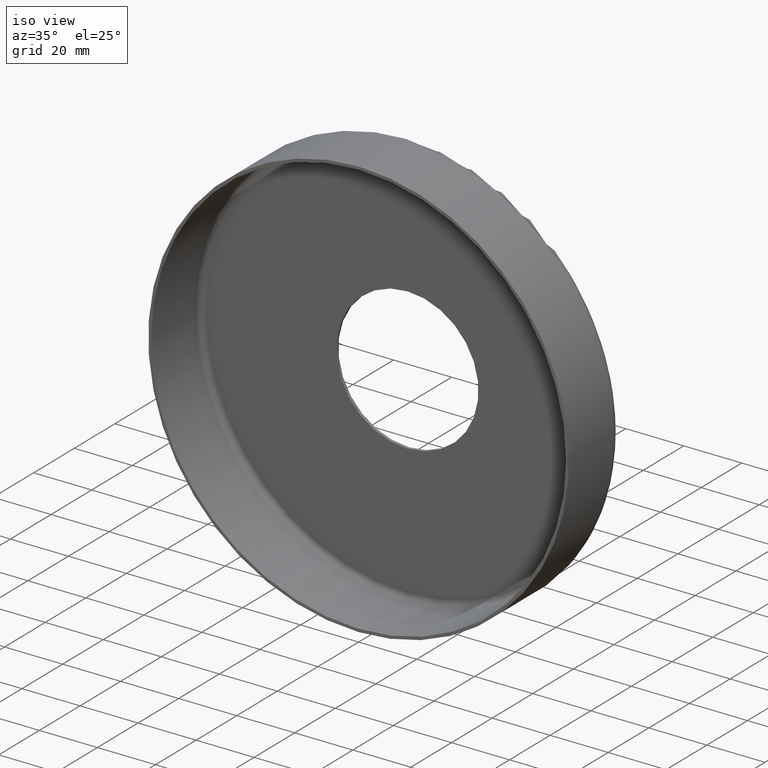
[diagram: clean part render]
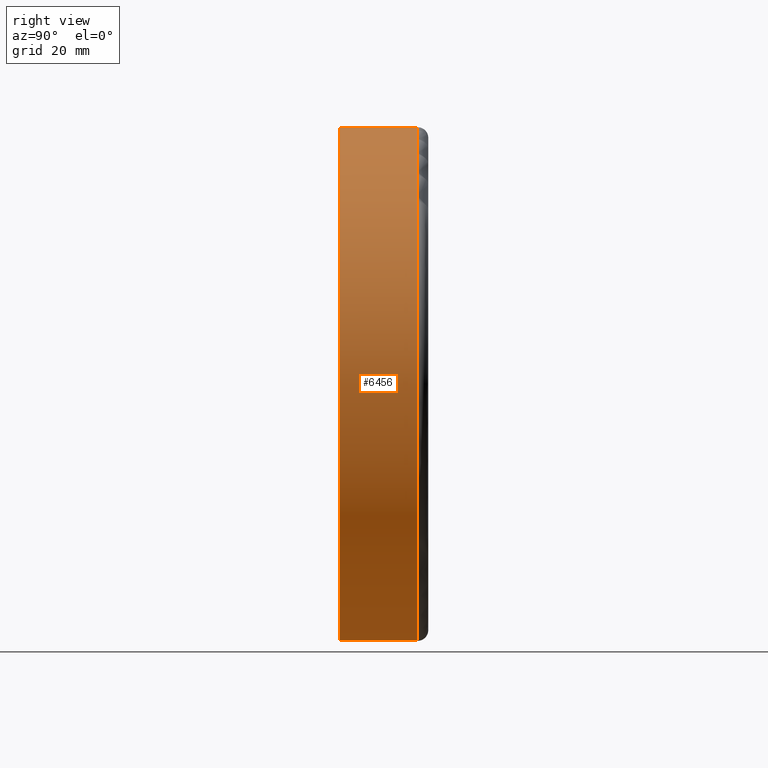
[diagram: tour spotlight — one face highlighted and labeled with its STEP entity id]
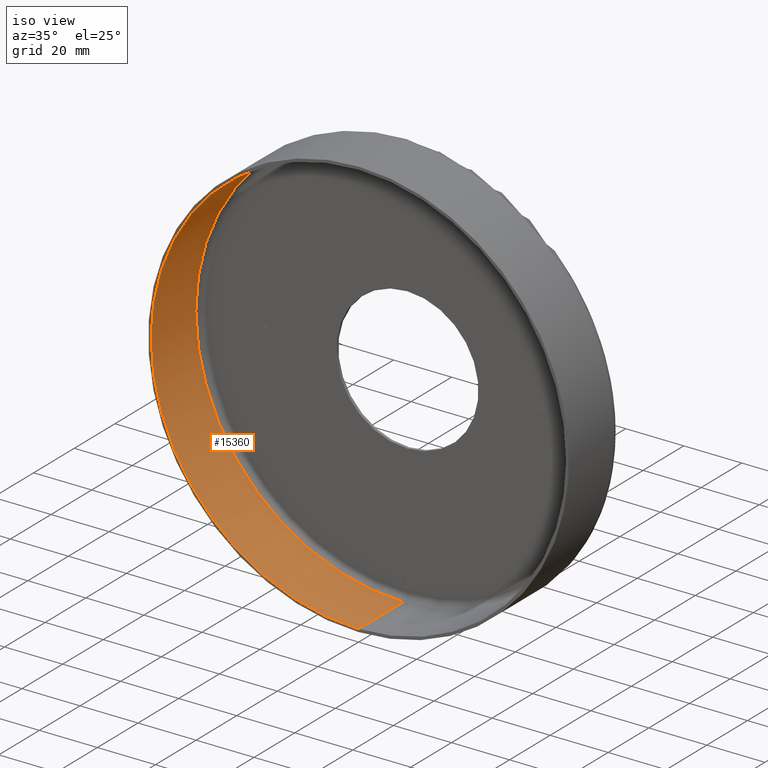
[diagram: tour spotlight — one face highlighted and labeled with its STEP entity id]
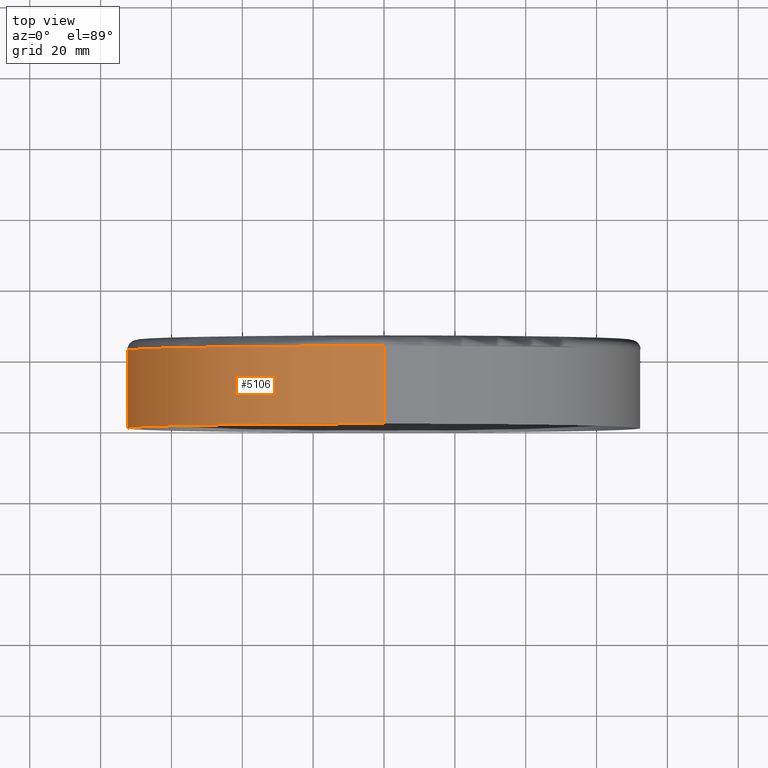
[diagram: tour spotlight — one face highlighted and labeled with its STEP entity id]
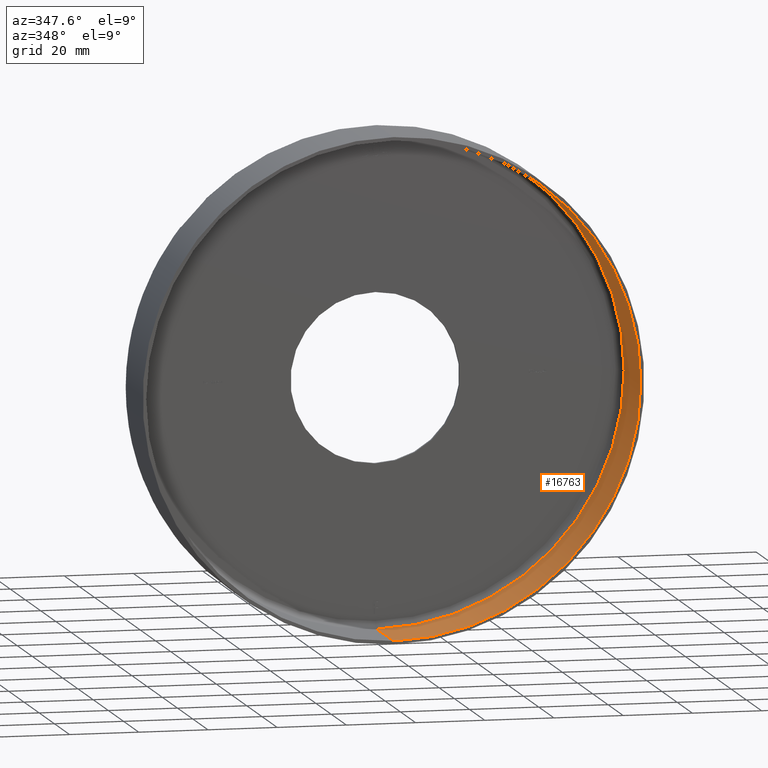
[diagram: tour spotlight — one face highlighted and labeled with its STEP entity id]
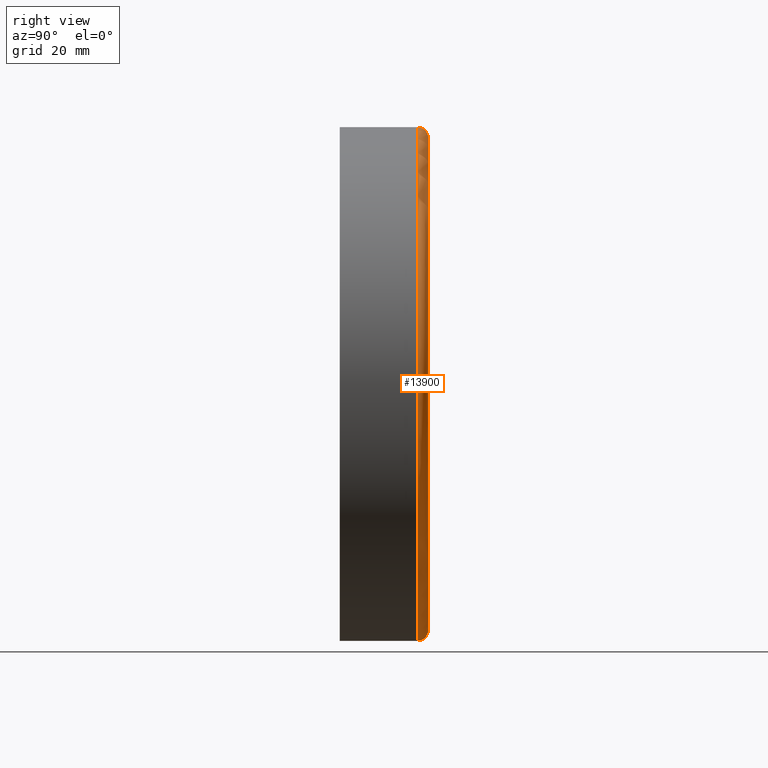
[diagram: tour spotlight — one face highlighted and labeled with its STEP entity id]
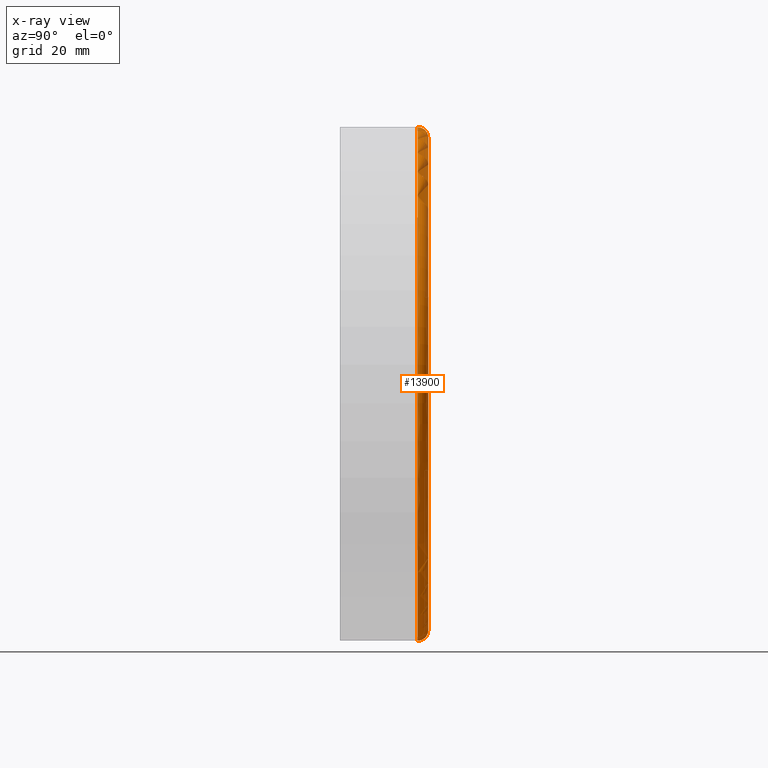
[diagram: x-ray of the same camera — body ghosted, this tour face saturated]
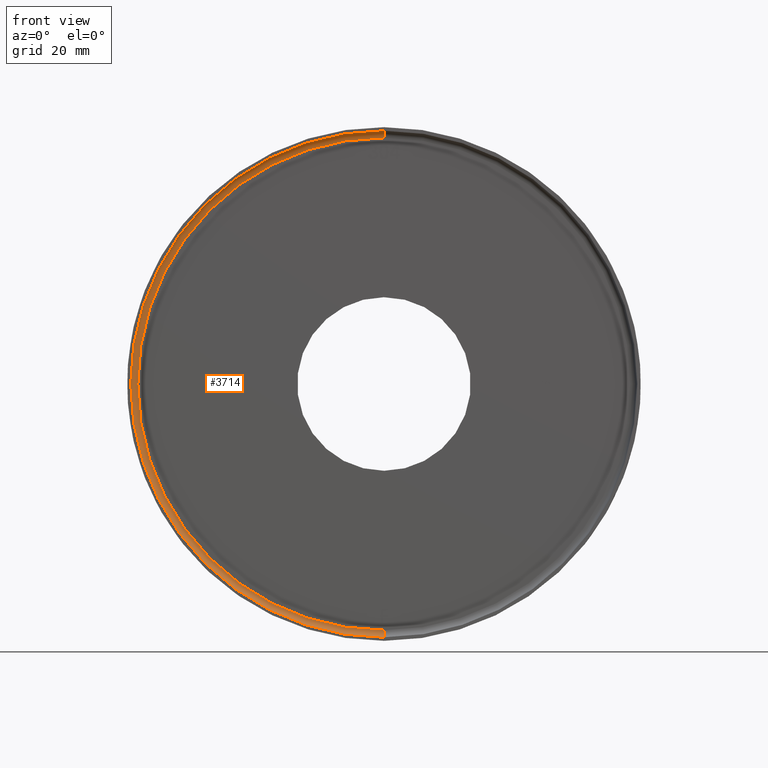
[diagram: tour spotlight — one face highlighted and labeled with its STEP entity id]
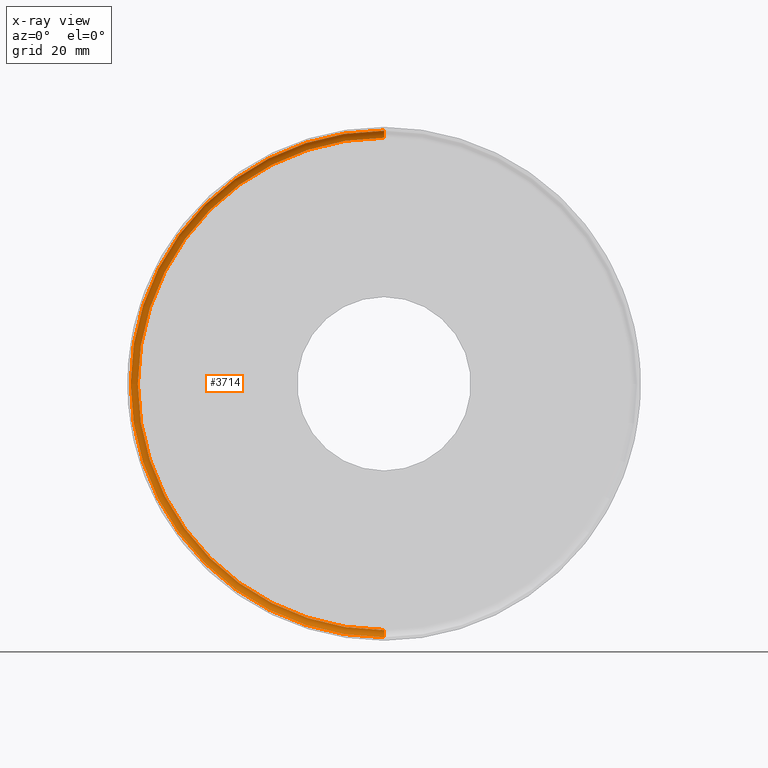
[diagram: x-ray of the same camera — body ghosted, this tour face saturated]
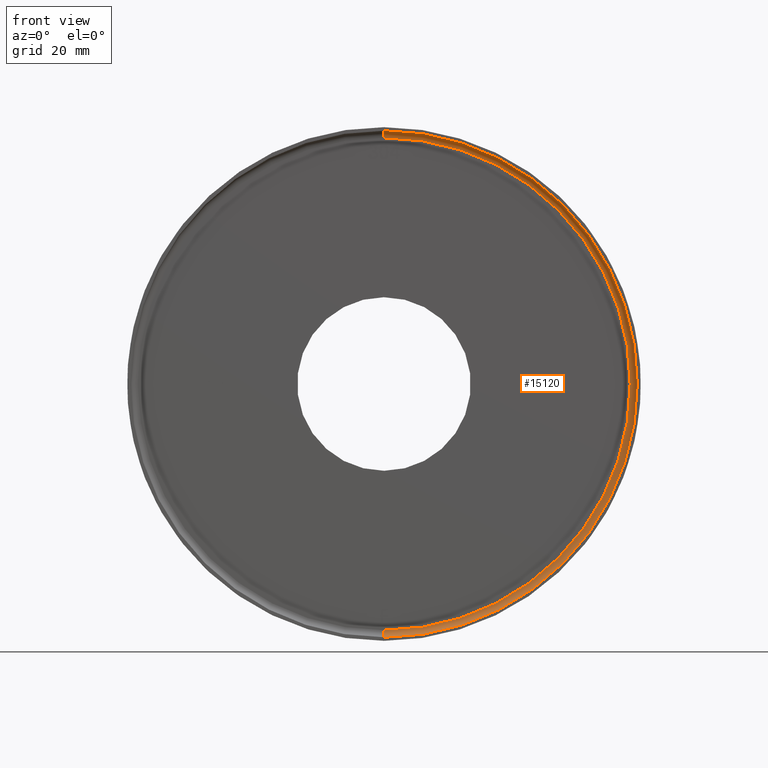
[diagram: tour spotlight — one face highlighted and labeled with its STEP entity id]
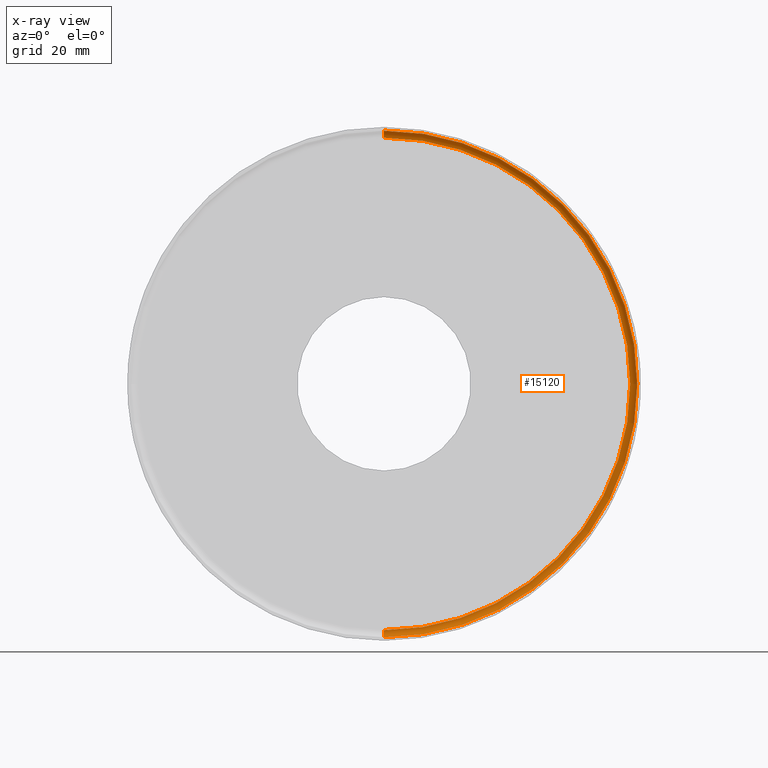
[diagram: x-ray of the same camera — body ghosted, this tour face saturated]
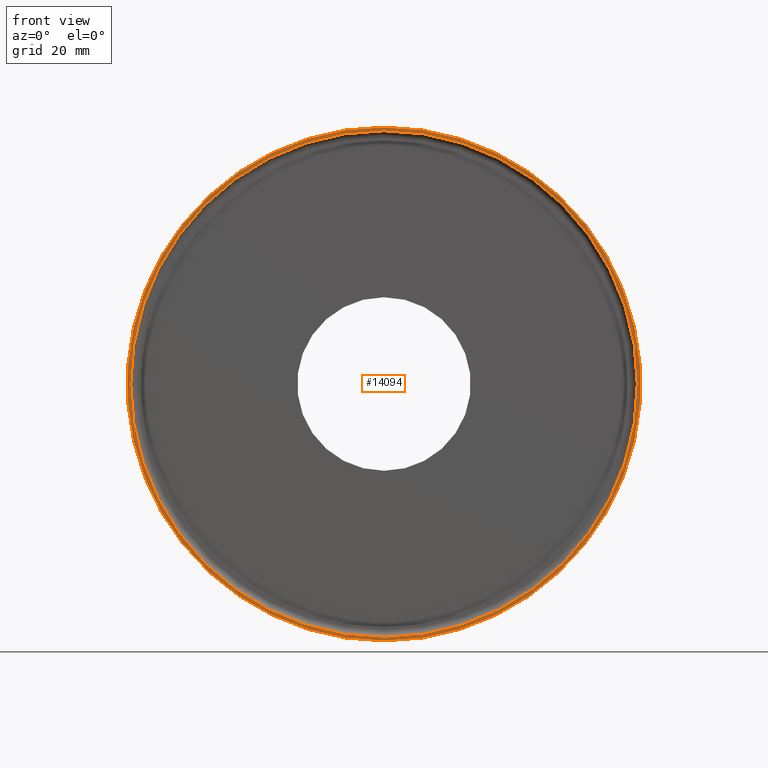
[diagram: tour spotlight — one face highlighted and labeled with its STEP entity id]
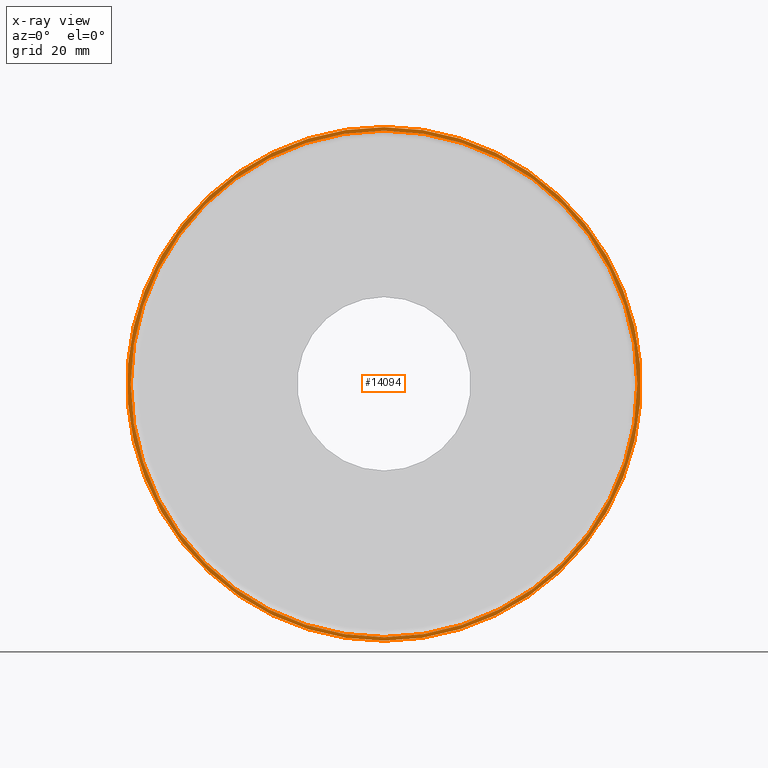
[diagram: x-ray of the same camera — body ghosted, this tour face saturated]
A machine part: a face-by-face anatomy tour. The part has 303 B-rep faces; the first image is the clean iso view, then the 8 largest visible faces are spotlighted one at a time (largest first), each with its STEP entity span.

Face 1 — right view, entity #6456. In plain terms, the highlighted cylindrical surface (partial cylindrical patch) has radius 72.5 mm, axis along (-0, -1, -0).
Definition (entity closure, byte-faithful):
#410 = ORIENTED_EDGE ( 'NONE', *, *, #5910, .F. ) ;
#1244 = CARTESIAN_POINT ( 'NONE',  ( 8.878689293818309285E-15, 22.00000000000000355, 72.50000000000000000 ) ) ;
#1687 = DIRECTION ( 'NONE',  ( 0.000000000000000000, 0.000000000000000000, -1.000000000000000000 ) ) ;
#1801 = DIRECTION ( 'NONE',  ( -0.000000000000000000, -1.000000000000000000, -0.000000000000000000 ) ) ;
#2802 = LINE ( 'NONE', #13670, #3226 ) ;
#2814 = EDGE_CURVE ( 'NONE', #6087, #8935, #3961, .T. ) ;
#2870 = CYLINDRICAL_SURFACE ( 'NONE', #10048, 72.50000000000000000 ) ;
#3177 = AXIS2_PLACEMENT_3D ( 'NONE', #13753, #6024, #15058 ) ;
#3186 = CARTESIAN_POINT ( 'NONE',  ( 0.000000000000000000, 0.000000000000000000, -72.50000000000000000 ) ) ;
#3226 = VECTOR ( 'NONE', #7292, 1000.000000000000000 ) ;
#3961 = CIRCLE ( 'NONE', #3177, 72.50000000000000000 ) ;
#5283 = VERTEX_POINT ( 'NONE', #7391 ) ;
#5910 = EDGE_CURVE ( 'NONE', #5283, #13856, #16650, .T. ) ;
#6024 = DIRECTION ( 'NONE',  ( -0.000000000000000000, -1.000000000000000000, -0.000000000000000000 ) ) ;
#6087 = VERTEX_POINT ( 'NONE', #13775 ) ;
#6456 = ADVANCED_FACE ( 'NONE', ( #8186 ), #2870, .T. ) ;
#6803 = CARTESIAN_POINT ( 'NONE',  ( 0.000000000000000000, 0.000000000000000000, 0.000000000000000000 ) ) ;
#7292 = DIRECTION ( 'NONE',  ( -0.000000000000000000, -1.000000000000000000, -0.000000000000000000 ) ) ;
#7391 = CARTESIAN_POINT ( 'NONE',  ( 0.000000000000000000, 0.000000000000000000, -72.50000000000000000 ) ) ;
#7453 = AXIS2_PLACEMENT_3D ( 'NONE', #15909, #7980, #10573 ) ;
#7980 = DIRECTION ( 'NONE',  ( -0.000000000000000000, -1.000000000000000000, -0.000000000000000000 ) ) ;
#8186 = FACE_OUTER_BOUND ( 'NONE', #15050, .T. ) ;
#8415 = ORIENTED_EDGE ( 'NONE', *, *, #2814, .T. ) ;
#8935 = VERTEX_POINT ( 'NONE', #1244 ) ;
#9566 = ORIENTED_EDGE ( 'NONE', *, *, #10639, .F. ) ;
#9967 = ORIENTED_EDGE ( 'NONE', *, *, #10737, .T. ) ;
#10048 = AXIS2_PLACEMENT_3D ( 'NONE', #6803, #1801, #1687 ) ;
#10573 = DIRECTION ( 'NONE',  ( 0.000000000000000000, 0.000000000000000000, -1.000000000000000000 ) ) ;
#10639 = EDGE_CURVE ( 'NONE', #6087, #5283, #13568, .T. ) ;
#10737 = EDGE_CURVE ( 'NONE', #8935, #13856, #2802, .T. ) ;
#13568 = LINE ( 'NONE', #3186, #16165 ) ;
#13614 = DIRECTION ( 'NONE',  ( -0.000000000000000000, -1.000000000000000000, -0.000000000000000000 ) ) ;
#13670 = CARTESIAN_POINT ( 'NONE',  ( 8.878689293818309285E-15, 0.000000000000000000, 72.50000000000000000 ) ) ;
#13753 = CARTESIAN_POINT ( 'NONE',  ( 0.000000000000000000, 22.00000000000000355, 0.000000000000000000 ) ) ;
#13775 = CARTESIAN_POINT ( 'NONE',  ( 0.000000000000000000, 22.00000000000000355, -72.50000000000000000 ) ) ;
#13856 = VERTEX_POINT ( 'NONE', #14489 ) ;
#14489 = CARTESIAN_POINT ( 'NONE',  ( 8.878689293818309285E-15, 0.000000000000000000, 72.50000000000000000 ) ) ;
#15050 = EDGE_LOOP ( 'NONE', ( #8415, #9967, #410, #9566 ) ) ;
#15058 = DIRECTION ( 'NONE',  ( 0.000000000000000000, 0.000000000000000000, -1.000000000000000000 ) ) ;
#15909 = CARTESIAN_POINT ( 'NONE',  ( 0.000000000000000000, 0.000000000000000000, 0.000000000000000000 ) ) ;
#16165 = VECTOR ( 'NONE', #13614, 1000.000000000000000 ) ;
#16650 = CIRCLE ( 'NONE', #7453, 72.50000000000000000 ) ;

Face 2 — iso view, entity #15360. In plain terms, the highlighted cylindrical surface (partial cylindrical patch) has radius 71.5 mm, axis along (-0, -1, -0).
Definition (entity closure, byte-faithful):
#63 = ORIENTED_EDGE ( 'NONE', *, *, #5525, .T. ) ;
#296 = AXIS2_PLACEMENT_3D ( 'NONE', #6720, #14514, #1500 ) ;
#1500 = DIRECTION ( 'NONE',  ( 0.000000000000000000, 0.000000000000000000, -1.000000000000000000 ) ) ;
#1531 = DIRECTION ( 'NONE',  ( -0.000000000000000000, -1.000000000000000000, -0.000000000000000000 ) ) ;
#1558 = CARTESIAN_POINT ( 'NONE',  ( 0.000000000000000000, -1.224646799147353207E-16, -71.50000000000000000 ) ) ;
#1838 = ORIENTED_EDGE ( 'NONE', *, *, #2766, .T. ) ;
#2385 = CARTESIAN_POINT ( 'NONE',  ( 0.000000000000000000, 22.00000000000000355, -71.50000000000000000 ) ) ;
#2691 = FACE_OUTER_BOUND ( 'NONE', #7585, .T. ) ;
#2766 = EDGE_CURVE ( 'NONE', #9582, #9384, #13502, .T. ) ;
#4300 = DIRECTION ( 'NONE',  ( 0.000000000000000000, 0.000000000000000000, -1.000000000000000000 ) ) ;
#4487 = DIRECTION ( 'NONE',  ( -0.000000000000000000, -1.000000000000000000, -0.000000000000000000 ) ) ;
#5078 = EDGE_CURVE ( 'NONE', #16608, #15619, #5784, .T. ) ;
#5525 = EDGE_CURVE ( 'NONE', #16608, #9582, #12631, .T. ) ;
#5784 = CIRCLE ( 'NONE', #7991, 71.50000000000000000 ) ;
#6720 = CARTESIAN_POINT ( 'NONE',  ( 0.000000000000000000, 0.000000000000000000, 0.000000000000000000 ) ) ;
#6739 = CARTESIAN_POINT ( 'NONE',  ( 8.756224613903574137E-15, 0.000000000000000000, 71.50000000000000000 ) ) ;
#6830 = ORIENTED_EDGE ( 'NONE', *, *, #5078, .F. ) ;
#6877 = CARTESIAN_POINT ( 'NONE',  ( 0.000000000000000000, -1.224646799147353207E-16, 0.000000000000000000 ) ) ;
#6928 = DIRECTION ( 'NONE',  ( -0.000000000000000000, -1.000000000000000000, -0.000000000000000000 ) ) ;
#7585 = EDGE_LOOP ( 'NONE', ( #6830, #63, #1838, #10645 ) ) ;
#7798 = CYLINDRICAL_SURFACE ( 'NONE', #296, 71.50000000000000000 ) ;
#7909 = LINE ( 'NONE', #9412, #13959 ) ;
#7991 = AXIS2_PLACEMENT_3D ( 'NONE', #11010, #4487, #8416 ) ;
#8416 = DIRECTION ( 'NONE',  ( 0.000000000000000000, 0.000000000000000000, -1.000000000000000000 ) ) ;
#9384 = VERTEX_POINT ( 'NONE', #1558 ) ;
#9412 = CARTESIAN_POINT ( 'NONE',  ( 0.000000000000000000, 0.000000000000000000, -71.50000000000000000 ) ) ;
#9582 = VERTEX_POINT ( 'NONE', #11134 ) ;
#10645 = ORIENTED_EDGE ( 'NONE', *, *, #11086, .F. ) ;
#11010 = CARTESIAN_POINT ( 'NONE',  ( 0.000000000000000000, 22.00000000000000355, 0.000000000000000000 ) ) ;
#11086 = EDGE_CURVE ( 'NONE', #15619, #9384, #7909, .T. ) ;
#11134 = CARTESIAN_POINT ( 'NONE',  ( 8.756224613903574137E-15, -1.224646799147353207E-16, 71.50000000000000000 ) ) ;
#11314 = AXIS2_PLACEMENT_3D ( 'NONE', #6877, #6928, #4300 ) ;
#11931 = DIRECTION ( 'NONE',  ( -0.000000000000000000, -1.000000000000000000, -0.000000000000000000 ) ) ;
#12238 = VECTOR ( 'NONE', #11931, 1000.000000000000000 ) ;
#12631 = LINE ( 'NONE', #6739, #12238 ) ;
#13502 = CIRCLE ( 'NONE', #11314, 71.50000000000000000 ) ;
#13959 = VECTOR ( 'NONE', #1531, 1000.000000000000000 ) ;
#14514 = DIRECTION ( 'NONE',  ( -0.000000000000000000, -1.000000000000000000, -0.000000000000000000 ) ) ;
#15157 = CARTESIAN_POINT ( 'NONE',  ( 8.756224613903574137E-15, 22.00000000000000355, 71.50000000000000000 ) ) ;
#15360 = ADVANCED_FACE ( 'NONE', ( #2691 ), #7798, .F. ) ;
#15619 = VERTEX_POINT ( 'NONE', #2385 ) ;
#16608 = VERTEX_POINT ( 'NONE', #15157 ) ;

Face 3 — top view, entity #5106. In plain terms, the highlighted cylindrical surface (partial cylindrical patch) has radius 72.5 mm, axis along (-0, -1, -0).
Definition (entity closure, byte-faithful):
#18 = ORIENTED_EDGE ( 'NONE', *, *, #4654, .F. ) ;
#698 = CARTESIAN_POINT ( 'NONE',  ( 0.000000000000000000, 0.000000000000000000, 0.000000000000000000 ) ) ;
#1244 = CARTESIAN_POINT ( 'NONE',  ( 8.878689293818309285E-15, 22.00000000000000355, 72.50000000000000000 ) ) ;
#1560 = DIRECTION ( 'NONE',  ( 0.000000000000000000, 0.000000000000000000, -1.000000000000000000 ) ) ;
#2051 = DIRECTION ( 'NONE',  ( 0.000000000000000000, 0.000000000000000000, -1.000000000000000000 ) ) ;
#2802 = LINE ( 'NONE', #13670, #3226 ) ;
#3186 = CARTESIAN_POINT ( 'NONE',  ( 0.000000000000000000, 0.000000000000000000, -72.50000000000000000 ) ) ;
#3226 = VECTOR ( 'NONE', #7292, 1000.000000000000000 ) ;
#4336 = DIRECTION ( 'NONE',  ( -0.000000000000000000, -1.000000000000000000, -0.000000000000000000 ) ) ;
#4592 = ORIENTED_EDGE ( 'NONE', *, *, #14893, .T. ) ;
#4654 = EDGE_CURVE ( 'NONE', #13856, #5283, #16468, .T. ) ;
#5106 = ADVANCED_FACE ( 'NONE', ( #5768 ), #11230, .T. ) ;
#5262 = CARTESIAN_POINT ( 'NONE',  ( 0.000000000000000000, 22.00000000000000355, 0.000000000000000000 ) ) ;
#5283 = VERTEX_POINT ( 'NONE', #7391 ) ;
#5768 = FACE_OUTER_BOUND ( 'NONE', #15809, .T. ) ;
#6087 = VERTEX_POINT ( 'NONE', #13775 ) ;
#6123 = ORIENTED_EDGE ( 'NONE', *, *, #10639, .T. ) ;
#7292 = DIRECTION ( 'NONE',  ( -0.000000000000000000, -1.000000000000000000, -0.000000000000000000 ) ) ;
#7391 = CARTESIAN_POINT ( 'NONE',  ( 0.000000000000000000, 0.000000000000000000, -72.50000000000000000 ) ) ;
#8418 = AXIS2_PLACEMENT_3D ( 'NONE', #13164, #4336, #1560 ) ;
#8935 = VERTEX_POINT ( 'NONE', #1244 ) ;
#9204 = CIRCLE ( 'NONE', #14832, 72.50000000000000000 ) ;
#10639 = EDGE_CURVE ( 'NONE', #6087, #5283, #13568, .T. ) ;
#10737 = EDGE_CURVE ( 'NONE', #8935, #13856, #2802, .T. ) ;
#11140 = ORIENTED_EDGE ( 'NONE', *, *, #10737, .F. ) ;
#11167 = DIRECTION ( 'NONE',  ( -0.000000000000000000, -1.000000000000000000, -0.000000000000000000 ) ) ;
#11230 = CYLINDRICAL_SURFACE ( 'NONE', #15227, 72.50000000000000000 ) ;
#13164 = CARTESIAN_POINT ( 'NONE',  ( 0.000000000000000000, 0.000000000000000000, 0.000000000000000000 ) ) ;
#13568 = LINE ( 'NONE', #3186, #16165 ) ;
#13614 = DIRECTION ( 'NONE',  ( -0.000000000000000000, -1.000000000000000000, -0.000000000000000000 ) ) ;
#13670 = CARTESIAN_POINT ( 'NONE',  ( 8.878689293818309285E-15, 0.000000000000000000, 72.50000000000000000 ) ) ;
#13775 = CARTESIAN_POINT ( 'NONE',  ( 0.000000000000000000, 22.00000000000000355, -72.50000000000000000 ) ) ;
#13856 = VERTEX_POINT ( 'NONE', #14489 ) ;
#14489 = CARTESIAN_POINT ( 'NONE',  ( 8.878689293818309285E-15, 0.000000000000000000, 72.50000000000000000 ) ) ;
#14832 = AXIS2_PLACEMENT_3D ( 'NONE', #5262, #15592, #15547 ) ;
#14893 = EDGE_CURVE ( 'NONE', #8935, #6087, #9204, .T. ) ;
#15227 = AXIS2_PLACEMENT_3D ( 'NONE', #698, #11167, #2051 ) ;
#15547 = DIRECTION ( 'NONE',  ( 0.000000000000000000, 0.000000000000000000, -1.000000000000000000 ) ) ;
#15592 = DIRECTION ( 'NONE',  ( -0.000000000000000000, -1.000000000000000000, -0.000000000000000000 ) ) ;
#15809 = EDGE_LOOP ( 'NONE', ( #11140, #4592, #6123, #18 ) ) ;
#16165 = VECTOR ( 'NONE', #13614, 1000.000000000000000 ) ;
#16468 = CIRCLE ( 'NONE', #8418, 72.50000000000000000 ) ;

Face 4 — auxiliary view, entity #16763. In plain terms, the highlighted cylindrical surface (partial cylindrical patch) has radius 71.5 mm, axis along (-0, -1, -0).
Definition (entity closure, byte-faithful):
#884 = DIRECTION ( 'NONE',  ( -0.000000000000000000, -1.000000000000000000, -0.000000000000000000 ) ) ;
#901 = DIRECTION ( 'NONE',  ( 0.000000000000000000, 0.000000000000000000, -1.000000000000000000 ) ) ;
#1306 = ORIENTED_EDGE ( 'NONE', *, *, #11086, .T. ) ;
#1531 = DIRECTION ( 'NONE',  ( -0.000000000000000000, -1.000000000000000000, -0.000000000000000000 ) ) ;
#1558 = CARTESIAN_POINT ( 'NONE',  ( 0.000000000000000000, -1.224646799147353207E-16, -71.50000000000000000 ) ) ;
#2117 = CIRCLE ( 'NONE', #5154, 71.50000000000000000 ) ;
#2385 = CARTESIAN_POINT ( 'NONE',  ( 0.000000000000000000, 22.00000000000000355, -71.50000000000000000 ) ) ;
#4174 = ORIENTED_EDGE ( 'NONE', *, *, #5650, .F. ) ;
#4279 = CIRCLE ( 'NONE', #13074, 71.50000000000000000 ) ;
#5154 = AXIS2_PLACEMENT_3D ( 'NONE', #8661, #12551, #901 ) ;
#5525 = EDGE_CURVE ( 'NONE', #16608, #9582, #12631, .T. ) ;
#5650 = EDGE_CURVE ( 'NONE', #15619, #16608, #2117, .T. ) ;
#6620 = DIRECTION ( 'NONE',  ( 0.000000000000000000, 0.000000000000000000, -1.000000000000000000 ) ) ;
#6739 = CARTESIAN_POINT ( 'NONE',  ( 8.756224613903574137E-15, 0.000000000000000000, 71.50000000000000000 ) ) ;
#6789 = DIRECTION ( 'NONE',  ( -0.000000000000000000, -1.000000000000000000, -0.000000000000000000 ) ) ;
#6940 = AXIS2_PLACEMENT_3D ( 'NONE', #13285, #6789, #6620 ) ;
#7909 = LINE ( 'NONE', #9412, #13959 ) ;
#8395 = EDGE_CURVE ( 'NONE', #9384, #9582, #4279, .T. ) ;
#8661 = CARTESIAN_POINT ( 'NONE',  ( 0.000000000000000000, 22.00000000000000355, 0.000000000000000000 ) ) ;
#8739 = EDGE_LOOP ( 'NONE', ( #13778, #4174, #1306, #10161 ) ) ;
#8750 = DIRECTION ( 'NONE',  ( 0.000000000000000000, 0.000000000000000000, -1.000000000000000000 ) ) ;
#9384 = VERTEX_POINT ( 'NONE', #1558 ) ;
#9412 = CARTESIAN_POINT ( 'NONE',  ( 0.000000000000000000, 0.000000000000000000, -71.50000000000000000 ) ) ;
#9582 = VERTEX_POINT ( 'NONE', #11134 ) ;
#10161 = ORIENTED_EDGE ( 'NONE', *, *, #8395, .T. ) ;
#11086 = EDGE_CURVE ( 'NONE', #15619, #9384, #7909, .T. ) ;
#11134 = CARTESIAN_POINT ( 'NONE',  ( 8.756224613903574137E-15, -1.224646799147353207E-16, 71.50000000000000000 ) ) ;
#11591 = FACE_OUTER_BOUND ( 'NONE', #8739, .T. ) ;
#11931 = DIRECTION ( 'NONE',  ( -0.000000000000000000, -1.000000000000000000, -0.000000000000000000 ) ) ;
#12238 = VECTOR ( 'NONE', #11931, 1000.000000000000000 ) ;
#12551 = DIRECTION ( 'NONE',  ( -0.000000000000000000, -1.000000000000000000, -0.000000000000000000 ) ) ;
#12631 = LINE ( 'NONE', #6739, #12238 ) ;
#13074 = AXIS2_PLACEMENT_3D ( 'NONE', #13834, #884, #8750 ) ;
#13285 = CARTESIAN_POINT ( 'NONE',  ( 0.000000000000000000, 0.000000000000000000, 0.000000000000000000 ) ) ;
#13778 = ORIENTED_EDGE ( 'NONE', *, *, #5525, .F. ) ;
#13834 = CARTESIAN_POINT ( 'NONE',  ( 0.000000000000000000, -1.224646799147353207E-16, 0.000000000000000000 ) ) ;
#13959 = VECTOR ( 'NONE', #1531, 1000.000000000000000 ) ;
#15157 = CARTESIAN_POINT ( 'NONE',  ( 8.756224613903574137E-15, 22.00000000000000355, 71.50000000000000000 ) ) ;
#15619 = VERTEX_POINT ( 'NONE', #2385 ) ;
#15816 = CYLINDRICAL_SURFACE ( 'NONE', #6940, 71.50000000000000000 ) ;
#16608 = VERTEX_POINT ( 'NONE', #15157 ) ;
#16763 = ADVANCED_FACE ( 'NONE', ( #11591 ), #15816, .F. ) ;

Face 5 — right view, entity #13900. An x-ray twin of the same camera follows (body ghosted, this face saturated) — the face is partly hidden behind the body. In plain terms, the highlighted toroidal blend (fillet) surface has major radius 69.5 mm and minor (blend) radius 3 mm.
Definition (entity closure, byte-faithful):
#292 = FACE_OUTER_BOUND ( 'NONE', #2472, .T. ) ;
#542 = CARTESIAN_POINT ( 'NONE',  ( 8.694992273946206563E-15, 25.00000000000000000, 69.49999999999998579 ) ) ;
#571 = DIRECTION ( 'NONE',  ( -0.000000000000000000, -1.000000000000000000, -0.000000000000000000 ) ) ;
#958 = ORIENTED_EDGE ( 'NONE', *, *, #2814, .F. ) ;
#1244 = CARTESIAN_POINT ( 'NONE',  ( 8.878689293818309285E-15, 22.00000000000000355, 72.50000000000000000 ) ) ;
#2333 = AXIS2_PLACEMENT_3D ( 'NONE', #4530, #4409, #10938 ) ;
#2472 = EDGE_LOOP ( 'NONE', ( #4679, #5723, #958, #6012 ) ) ;
#2814 = EDGE_CURVE ( 'NONE', #6087, #8935, #3961, .T. ) ;
#2963 = CIRCLE ( 'NONE', #11151, 3.000000000000002665 ) ;
#3140 = TOROIDAL_SURFACE ( 'NONE', #9644, 69.49999999999998579, 3.000000000000000888 ) ;
#3177 = AXIS2_PLACEMENT_3D ( 'NONE', #13753, #6024, #15058 ) ;
#3961 = CIRCLE ( 'NONE', #3177, 72.50000000000000000 ) ;
#4063 = EDGE_CURVE ( 'NONE', #5098, #7972, #4141, .T. ) ;
#4141 = CIRCLE ( 'NONE', #7555, 69.49999999999998579 ) ;
#4409 = DIRECTION ( 'NONE',  ( -1.000000000000000000, 0.000000000000000000, 0.000000000000000000 ) ) ;
#4530 = CARTESIAN_POINT ( 'NONE',  ( 0.000000000000000000, 22.00000000000000355, -69.49999999999998579 ) ) ;
#4679 = ORIENTED_EDGE ( 'NONE', *, *, #4063, .T. ) ;
#5098 = VERTEX_POINT ( 'NONE', #16115 ) ;
#5723 = ORIENTED_EDGE ( 'NONE', *, *, #12558, .T. ) ;
#6012 = ORIENTED_EDGE ( 'NONE', *, *, #7505, .F. ) ;
#6024 = DIRECTION ( 'NONE',  ( -0.000000000000000000, -1.000000000000000000, -0.000000000000000000 ) ) ;
#6087 = VERTEX_POINT ( 'NONE', #13775 ) ;
#6526 = CARTESIAN_POINT ( 'NONE',  ( 8.511295254074103841E-15, 22.00000000000000355, 69.49999999999998579 ) ) ;
#6539 = CIRCLE ( 'NONE', #2333, 3.000000000000002665 ) ;
#7043 = DIRECTION ( 'NONE',  ( 0.000000000000000000, 0.000000000000000000, -1.000000000000000000 ) ) ;
#7269 = DIRECTION ( 'NONE',  ( 0.000000000000000000, 0.000000000000000000, -1.000000000000000000 ) ) ;
#7505 = EDGE_CURVE ( 'NONE', #5098, #6087, #6539, .T. ) ;
#7555 = AXIS2_PLACEMENT_3D ( 'NONE', #11109, #14830, #7269 ) ;
#7972 = VERTEX_POINT ( 'NONE', #542 ) ;
#8935 = VERTEX_POINT ( 'NONE', #1244 ) ;
#9644 = AXIS2_PLACEMENT_3D ( 'NONE', #14772, #571, #7043 ) ;
#10938 = DIRECTION ( 'NONE',  ( 0.000000000000000000, 0.000000000000000000, 1.000000000000000000 ) ) ;
#11109 = CARTESIAN_POINT ( 'NONE',  ( 0.000000000000000000, 25.00000000000000000, 0.000000000000000000 ) ) ;
#11151 = AXIS2_PLACEMENT_3D ( 'NONE', #6526, #14484, #11705 ) ;
#11705 = DIRECTION ( 'NONE',  ( -1.224646799147354440E-16, 0.000000000000000000, -1.000000000000000000 ) ) ;
#12558 = EDGE_CURVE ( 'NONE', #7972, #8935, #2963, .T. ) ;
#13753 = CARTESIAN_POINT ( 'NONE',  ( 0.000000000000000000, 22.00000000000000355, 0.000000000000000000 ) ) ;
#13775 = CARTESIAN_POINT ( 'NONE',  ( 0.000000000000000000, 22.00000000000000355, -72.50000000000000000 ) ) ;
#13900 = ADVANCED_FACE ( 'NONE', ( #292 ), #3140, .T. ) ;
#14484 = DIRECTION ( 'NONE',  ( 1.000000000000000000, 0.000000000000000000, -1.224646799147353207E-16 ) ) ;
#14772 = CARTESIAN_POINT ( 'NONE',  ( 0.000000000000000000, 22.00000000000000355, 0.000000000000000000 ) ) ;
#14830 = DIRECTION ( 'NONE',  ( -0.000000000000000000, -1.000000000000000000, -0.000000000000000000 ) ) ;
#15058 = DIRECTION ( 'NONE',  ( 0.000000000000000000, 0.000000000000000000, -1.000000000000000000 ) ) ;
#16115 = CARTESIAN_POINT ( 'NONE',  ( 0.000000000000000000, 25.00000000000000000, -69.49999999999998579 ) ) ;

Face 6 — front view, entity #3714. An x-ray twin of the same camera follows (body ghosted, this face saturated) — the face is partly hidden behind the body. In plain terms, the highlighted toroidal blend (fillet) surface has major radius 69.5 mm and minor (blend) radius 2 mm.
Definition (entity closure, byte-faithful):
#184 = ORIENTED_EDGE ( 'NONE', *, *, #5078, .T. ) ;
#1342 = EDGE_CURVE ( 'NONE', #4529, #15619, #5425, .T. ) ;
#2150 = CIRCLE ( 'NONE', #6455, 69.49999999999998579 ) ;
#2297 = DIRECTION ( 'NONE',  ( -0.000000000000000000, -1.000000000000000000, -0.000000000000000000 ) ) ;
#2385 = CARTESIAN_POINT ( 'NONE',  ( 0.000000000000000000, 22.00000000000000355, -71.50000000000000000 ) ) ;
#2762 = CARTESIAN_POINT ( 'NONE',  ( 8.511295254074103841E-15, 22.00000000000000355, 69.49999999999998579 ) ) ;
#3382 = EDGE_CURVE ( 'NONE', #14537, #4529, #2150, .T. ) ;
#3714 = ADVANCED_FACE ( 'NONE', ( #13267 ), #15484, .F. ) ;
#4487 = DIRECTION ( 'NONE',  ( -0.000000000000000000, -1.000000000000000000, -0.000000000000000000 ) ) ;
#4529 = VERTEX_POINT ( 'NONE', #15966 ) ;
#4778 = DIRECTION ( 'NONE',  ( -0.000000000000000000, -1.000000000000000000, -0.000000000000000000 ) ) ;
#5078 = EDGE_CURVE ( 'NONE', #16608, #15619, #5784, .T. ) ;
#5393 = DIRECTION ( 'NONE',  ( 1.000000000000000000, 0.000000000000000000, -1.224646799147353207E-16 ) ) ;
#5425 = CIRCLE ( 'NONE', #9127, 2.000000000000001776 ) ;
#5784 = CIRCLE ( 'NONE', #7991, 71.50000000000000000 ) ;
#5968 = CIRCLE ( 'NONE', #10362, 2.000000000000001776 ) ;
#6271 = EDGE_CURVE ( 'NONE', #14537, #16608, #5968, .T. ) ;
#6455 = AXIS2_PLACEMENT_3D ( 'NONE', #15310, #2297, #8757 ) ;
#7375 = ORIENTED_EDGE ( 'NONE', *, *, #3382, .F. ) ;
#7991 = AXIS2_PLACEMENT_3D ( 'NONE', #11010, #4487, #8416 ) ;
#8416 = DIRECTION ( 'NONE',  ( 0.000000000000000000, 0.000000000000000000, -1.000000000000000000 ) ) ;
#8757 = DIRECTION ( 'NONE',  ( 0.000000000000000000, 0.000000000000000000, -1.000000000000000000 ) ) ;
#8962 = EDGE_LOOP ( 'NONE', ( #7375, #9270, #184, #9006 ) ) ;
#9006 = ORIENTED_EDGE ( 'NONE', *, *, #1342, .F. ) ;
#9127 = AXIS2_PLACEMENT_3D ( 'NONE', #12668, #9864, #13906 ) ;
#9270 = ORIENTED_EDGE ( 'NONE', *, *, #6271, .T. ) ;
#9864 = DIRECTION ( 'NONE',  ( -1.000000000000000000, 0.000000000000000000, 0.000000000000000000 ) ) ;
#10362 = AXIS2_PLACEMENT_3D ( 'NONE', #2762, #5393, #10388 ) ;
#10388 = DIRECTION ( 'NONE',  ( -1.224646799147349509E-16, 0.000000000000000000, -1.000000000000000000 ) ) ;
#11010 = CARTESIAN_POINT ( 'NONE',  ( 0.000000000000000000, 22.00000000000000355, 0.000000000000000000 ) ) ;
#11279 = CARTESIAN_POINT ( 'NONE',  ( 0.000000000000000000, 22.00000000000000355, 0.000000000000000000 ) ) ;
#12579 = DIRECTION ( 'NONE',  ( 0.000000000000000000, 0.000000000000000000, -1.000000000000000000 ) ) ;
#12668 = CARTESIAN_POINT ( 'NONE',  ( 0.000000000000000000, 22.00000000000000355, -69.49999999999998579 ) ) ;
#13267 = FACE_OUTER_BOUND ( 'NONE', #8962, .T. ) ;
#13603 = AXIS2_PLACEMENT_3D ( 'NONE', #11279, #4778, #12579 ) ;
#13906 = DIRECTION ( 'NONE',  ( 0.000000000000000000, 0.000000000000000000, 1.000000000000000000 ) ) ;
#14537 = VERTEX_POINT ( 'NONE', #16234 ) ;
#15157 = CARTESIAN_POINT ( 'NONE',  ( 8.756224613903574137E-15, 22.00000000000000355, 71.50000000000000000 ) ) ;
#15310 = CARTESIAN_POINT ( 'NONE',  ( 0.000000000000000000, 24.00000000000000000, 0.000000000000000000 ) ) ;
#15484 = TOROIDAL_SURFACE ( 'NONE', #13603, 69.49999999999998579, 2.000000000000000000 ) ;
#15619 = VERTEX_POINT ( 'NONE', #2385 ) ;
#15966 = CARTESIAN_POINT ( 'NONE',  ( 0.000000000000000000, 24.00000000000000000, -69.49999999999998579 ) ) ;
#16234 = CARTESIAN_POINT ( 'NONE',  ( 8.633759933988838989E-15, 24.00000000000000000, 69.49999999999998579 ) ) ;
#16608 = VERTEX_POINT ( 'NONE', #15157 ) ;

Face 7 — front view, entity #15120. An x-ray twin of the same camera follows (body ghosted, this face saturated) — the face is partly hidden behind the body. In plain terms, the highlighted toroidal blend (fillet) surface has major radius 69.5 mm and minor (blend) radius 2 mm.
Definition (entity closure, byte-faithful):
#211 = EDGE_LOOP ( 'NONE', ( #10068, #15477, #11222, #2976 ) ) ;
#901 = DIRECTION ( 'NONE',  ( 0.000000000000000000, 0.000000000000000000, -1.000000000000000000 ) ) ;
#1342 = EDGE_CURVE ( 'NONE', #4529, #15619, #5425, .T. ) ;
#1483 = DIRECTION ( 'NONE',  ( -0.000000000000000000, -1.000000000000000000, -0.000000000000000000 ) ) ;
#2117 = CIRCLE ( 'NONE', #5154, 71.50000000000000000 ) ;
#2194 = DIRECTION ( 'NONE',  ( 0.000000000000000000, 0.000000000000000000, -1.000000000000000000 ) ) ;
#2385 = CARTESIAN_POINT ( 'NONE',  ( 0.000000000000000000, 22.00000000000000355, -71.50000000000000000 ) ) ;
#2762 = CARTESIAN_POINT ( 'NONE',  ( 8.511295254074103841E-15, 22.00000000000000355, 69.49999999999998579 ) ) ;
#2976 = ORIENTED_EDGE ( 'NONE', *, *, #5650, .T. ) ;
#4529 = VERTEX_POINT ( 'NONE', #15966 ) ;
#4951 = EDGE_CURVE ( 'NONE', #4529, #14537, #9632, .T. ) ;
#5154 = AXIS2_PLACEMENT_3D ( 'NONE', #8661, #12551, #901 ) ;
#5157 = TOROIDAL_SURFACE ( 'NONE', #9309, 69.49999999999998579, 2.000000000000000000 ) ;
#5285 = CARTESIAN_POINT ( 'NONE',  ( 0.000000000000000000, 24.00000000000000000, 0.000000000000000000 ) ) ;
#5393 = DIRECTION ( 'NONE',  ( 1.000000000000000000, 0.000000000000000000, -1.224646799147353207E-16 ) ) ;
#5425 = CIRCLE ( 'NONE', #9127, 2.000000000000001776 ) ;
#5650 = EDGE_CURVE ( 'NONE', #15619, #16608, #2117, .T. ) ;
#5968 = CIRCLE ( 'NONE', #10362, 2.000000000000001776 ) ;
#6271 = EDGE_CURVE ( 'NONE', #14537, #16608, #5968, .T. ) ;
#7368 = DIRECTION ( 'NONE',  ( -0.000000000000000000, -1.000000000000000000, -0.000000000000000000 ) ) ;
#8661 = CARTESIAN_POINT ( 'NONE',  ( 0.000000000000000000, 22.00000000000000355, 0.000000000000000000 ) ) ;
#9127 = AXIS2_PLACEMENT_3D ( 'NONE', #12668, #9864, #13906 ) ;
#9309 = AXIS2_PLACEMENT_3D ( 'NONE', #13950, #7368, #2194 ) ;
#9632 = CIRCLE ( 'NONE', #11534, 69.49999999999998579 ) ;
#9864 = DIRECTION ( 'NONE',  ( -1.000000000000000000, 0.000000000000000000, 0.000000000000000000 ) ) ;
#10068 = ORIENTED_EDGE ( 'NONE', *, *, #6271, .F. ) ;
#10362 = AXIS2_PLACEMENT_3D ( 'NONE', #2762, #5393, #10388 ) ;
#10388 = DIRECTION ( 'NONE',  ( -1.224646799147349509E-16, 0.000000000000000000, -1.000000000000000000 ) ) ;
#11222 = ORIENTED_EDGE ( 'NONE', *, *, #1342, .T. ) ;
#11534 = AXIS2_PLACEMENT_3D ( 'NONE', #5285, #1483, #15565 ) ;
#12032 = FACE_OUTER_BOUND ( 'NONE', #211, .T. ) ;
#12551 = DIRECTION ( 'NONE',  ( -0.000000000000000000, -1.000000000000000000, -0.000000000000000000 ) ) ;
#12668 = CARTESIAN_POINT ( 'NONE',  ( 0.000000000000000000, 22.00000000000000355, -69.49999999999998579 ) ) ;
#13906 = DIRECTION ( 'NONE',  ( 0.000000000000000000, 0.000000000000000000, 1.000000000000000000 ) ) ;
#13950 = CARTESIAN_POINT ( 'NONE',  ( 0.000000000000000000, 22.00000000000000355, 0.000000000000000000 ) ) ;
#14537 = VERTEX_POINT ( 'NONE', #16234 ) ;
#15120 = ADVANCED_FACE ( 'NONE', ( #12032 ), #5157, .F. ) ;
#15157 = CARTESIAN_POINT ( 'NONE',  ( 8.756224613903574137E-15, 22.00000000000000355, 71.50000000000000000 ) ) ;
#15477 = ORIENTED_EDGE ( 'NONE', *, *, #4951, .F. ) ;
#15565 = DIRECTION ( 'NONE',  ( 0.000000000000000000, 0.000000000000000000, -1.000000000000000000 ) ) ;
#15619 = VERTEX_POINT ( 'NONE', #2385 ) ;
#15966 = CARTESIAN_POINT ( 'NONE',  ( 0.000000000000000000, 24.00000000000000000, -69.49999999999998579 ) ) ;
#16234 = CARTESIAN_POINT ( 'NONE',  ( 8.633759933988838989E-15, 24.00000000000000000, 69.49999999999998579 ) ) ;
#16608 = VERTEX_POINT ( 'NONE', #15157 ) ;

Face 8 — front view, entity #14094. An x-ray twin of the same camera follows (body ghosted, this face saturated) — the face is partly hidden behind the body. In plain terms, the highlighted planar face has unit normal (0, -1, -0).
Definition (entity closure, byte-faithful):
#836 = CARTESIAN_POINT ( 'NONE',  ( 71.50000000000000000, -6.123233995736766036E-17, 0.000000000000000000 ) ) ;
#884 = DIRECTION ( 'NONE',  ( -0.000000000000000000, -1.000000000000000000, -0.000000000000000000 ) ) ;
#1004 = EDGE_LOOP ( 'NONE', ( #11371, #10592 ) ) ;
#1558 = CARTESIAN_POINT ( 'NONE',  ( 0.000000000000000000, -1.224646799147353207E-16, -71.50000000000000000 ) ) ;
#1560 = DIRECTION ( 'NONE',  ( 0.000000000000000000, 0.000000000000000000, -1.000000000000000000 ) ) ;
#2766 = EDGE_CURVE ( 'NONE', #9582, #9384, #13502, .T. ) ;
#4279 = CIRCLE ( 'NONE', #13074, 71.50000000000000000 ) ;
#4300 = DIRECTION ( 'NONE',  ( 0.000000000000000000, 0.000000000000000000, -1.000000000000000000 ) ) ;
#4336 = DIRECTION ( 'NONE',  ( -0.000000000000000000, -1.000000000000000000, -0.000000000000000000 ) ) ;
#4345 = PLANE ( 'NONE',  #15989 ) ;
#4654 = EDGE_CURVE ( 'NONE', #13856, #5283, #16468, .T. ) ;
#4970 = FACE_BOUND ( 'NONE', #1004, .T. ) ;
#5283 = VERTEX_POINT ( 'NONE', #7391 ) ;
#5910 = EDGE_CURVE ( 'NONE', #5283, #13856, #16650, .T. ) ;
#6877 = CARTESIAN_POINT ( 'NONE',  ( 0.000000000000000000, -1.224646799147353207E-16, 0.000000000000000000 ) ) ;
#6928 = DIRECTION ( 'NONE',  ( -0.000000000000000000, -1.000000000000000000, -0.000000000000000000 ) ) ;
#7391 = CARTESIAN_POINT ( 'NONE',  ( 0.000000000000000000, 0.000000000000000000, -72.50000000000000000 ) ) ;
#7453 = AXIS2_PLACEMENT_3D ( 'NONE', #15909, #7980, #10573 ) ;
#7980 = DIRECTION ( 'NONE',  ( -0.000000000000000000, -1.000000000000000000, -0.000000000000000000 ) ) ;
#8395 = EDGE_CURVE ( 'NONE', #9384, #9582, #4279, .T. ) ;
#8418 = AXIS2_PLACEMENT_3D ( 'NONE', #13164, #4336, #1560 ) ;
#8498 = DIRECTION ( 'NONE',  ( 0.000000000000000000, -1.000000000000000000, -0.000000000000000000 ) ) ;
#8750 = DIRECTION ( 'NONE',  ( 0.000000000000000000, 0.000000000000000000, -1.000000000000000000 ) ) ;
#8861 = ORIENTED_EDGE ( 'NONE', *, *, #5910, .T. ) ;
#9384 = VERTEX_POINT ( 'NONE', #1558 ) ;
#9582 = VERTEX_POINT ( 'NONE', #11134 ) ;
#9843 = FACE_OUTER_BOUND ( 'NONE', #13744, .T. ) ;
#9909 = DIRECTION ( 'NONE',  ( 0.000000000000000000, 0.000000000000000000, -1.000000000000000000 ) ) ;
#10573 = DIRECTION ( 'NONE',  ( 0.000000000000000000, 0.000000000000000000, -1.000000000000000000 ) ) ;
#10592 = ORIENTED_EDGE ( 'NONE', *, *, #2766, .F. ) ;
#11134 = CARTESIAN_POINT ( 'NONE',  ( 8.756224613903574137E-15, -1.224646799147353207E-16, 71.50000000000000000 ) ) ;
#11314 = AXIS2_PLACEMENT_3D ( 'NONE', #6877, #6928, #4300 ) ;
#11371 = ORIENTED_EDGE ( 'NONE', *, *, #8395, .F. ) ;
#13074 = AXIS2_PLACEMENT_3D ( 'NONE', #13834, #884, #8750 ) ;
#13164 = CARTESIAN_POINT ( 'NONE',  ( 0.000000000000000000, 0.000000000000000000, 0.000000000000000000 ) ) ;
#13502 = CIRCLE ( 'NONE', #11314, 71.50000000000000000 ) ;
#13744 = EDGE_LOOP ( 'NONE', ( #8861, #15413 ) ) ;
#13834 = CARTESIAN_POINT ( 'NONE',  ( 0.000000000000000000, -1.224646799147353207E-16, 0.000000000000000000 ) ) ;
#13856 = VERTEX_POINT ( 'NONE', #14489 ) ;
#14094 = ADVANCED_FACE ( 'NONE', ( #9843, #4970 ), #4345, .T. ) ;
#14489 = CARTESIAN_POINT ( 'NONE',  ( 8.878689293818309285E-15, 0.000000000000000000, 72.50000000000000000 ) ) ;
#15413 = ORIENTED_EDGE ( 'NONE', *, *, #4654, .T. ) ;
#15909 = CARTESIAN_POINT ( 'NONE',  ( 0.000000000000000000, 0.000000000000000000, 0.000000000000000000 ) ) ;
#15989 = AXIS2_PLACEMENT_3D ( 'NONE', #836, #8498, #9909 ) ;
#16468 = CIRCLE ( 'NONE', #8418, 72.50000000000000000 ) ;
#16650 = CIRCLE ( 'NONE', #7453, 72.50000000000000000 ) ;